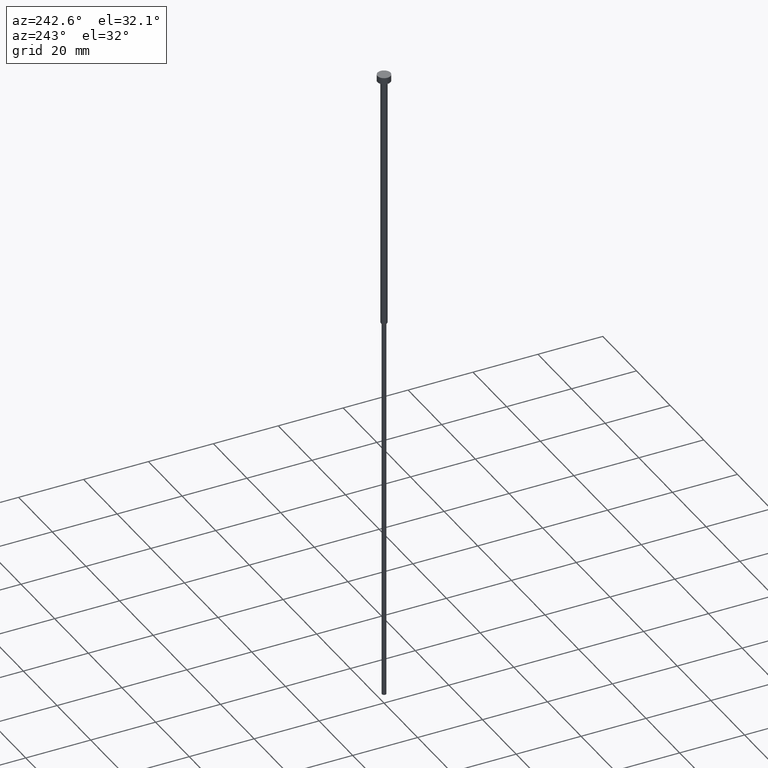
[diagram: clean part render]
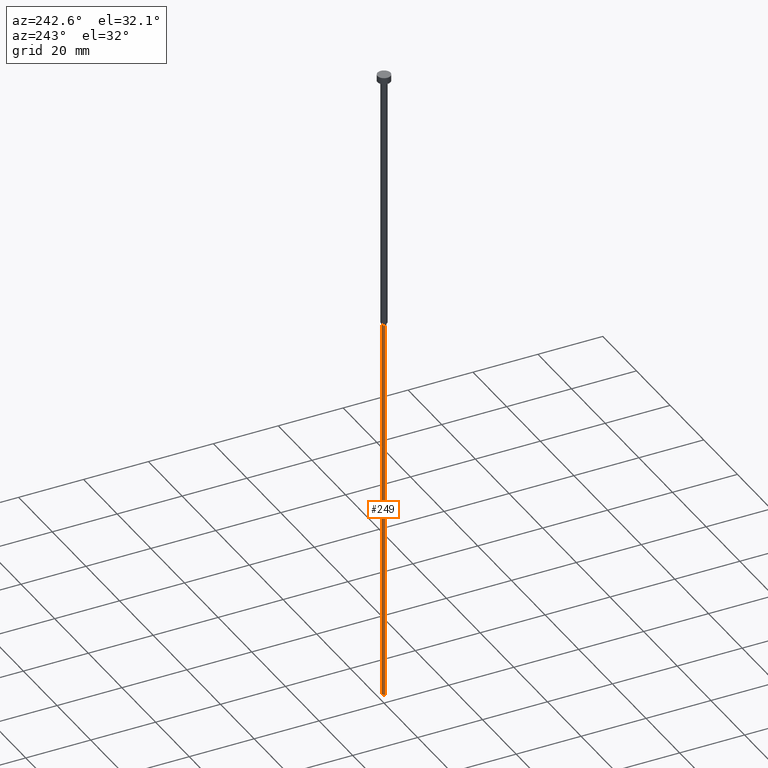
[diagram: same view with one face highlighted and labeled with its STEP entity id]
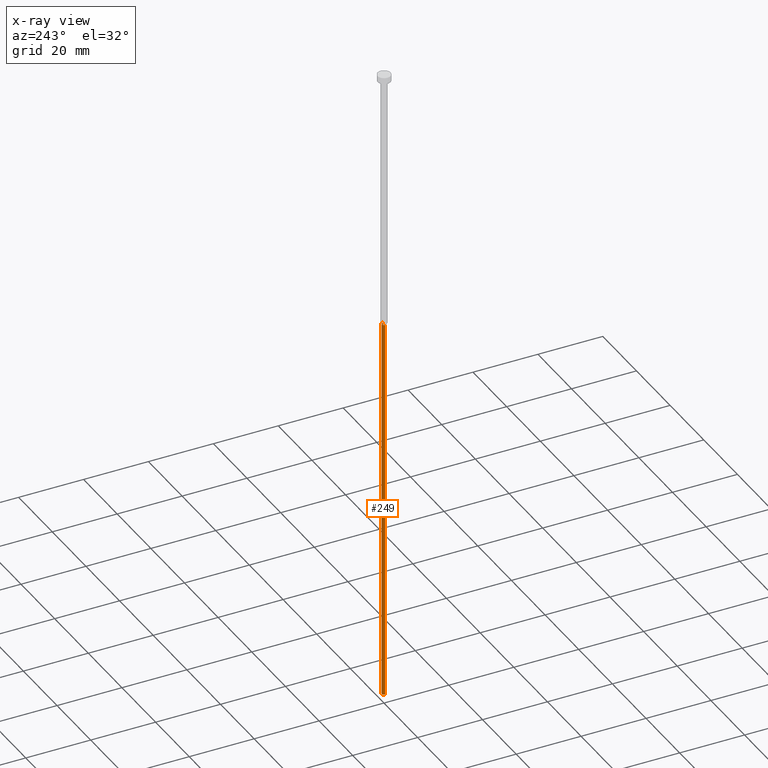
[diagram: x-ray of the same camera — body ghosted, the highlighted face saturated]
A machine part, auxiliary view. The second image highlights one B-rep face of the part: STEP entity #249.
The next image is the same camera in x-ray: the body ghosted, the highlighted face saturated — about 0% of this face is hidden behind the body in this view.
In plain terms, the highlighted cylindrical surface (edge-blend (fillet) strip) has radius 0.65 mm, axis along (-0, -0, 1).
Its self-contained STEP definition (entity closure, byte-faithful):
#1 = VERTEX_POINT ( 'NONE', #144 ) ;
#3 = EDGE_CURVE ( 'NONE', #112, #38, #30, .T. ) ;
#15 = FACE_OUTER_BOUND ( 'NONE', #120, .T. ) ;
#30 = LINE ( 'NONE', #248, #234 ) ;
#38 = VERTEX_POINT ( 'NONE', #174 ) ;
#49 = CYLINDRICAL_SURFACE ( 'NONE', #305, 0.6500000000000000222 ) ;
#55 = DIRECTION ( 'NONE',  ( -0.000000000000000000, -0.000000000000000000, 1.000000000000000000 ) ) ;
#69 = AXIS2_PLACEMENT_3D ( 'NONE', #82, #55, #172 ) ;
#80 = ORIENTED_EDGE ( 'NONE', *, *, #188, .F. ) ;
#82 = CARTESIAN_POINT ( 'NONE',  ( 0.000000000000000000, 0.000000000000000000, -200.0000000000000000 ) ) ;
#83 = CIRCLE ( 'NONE', #69, 0.6500000000000000222 ) ;
#87 = EDGE_CURVE ( 'NONE', #112, #1, #83, .T. ) ;
#98 = ORIENTED_EDGE ( 'NONE', *, *, #87, .T. ) ;
#100 = DIRECTION ( 'NONE',  ( -0.000000000000000000, -0.000000000000000000, 1.000000000000000000 ) ) ;
#105 = CIRCLE ( 'NONE', #138, 0.6500000000000000222 ) ;
#112 = VERTEX_POINT ( 'NONE', #278 ) ;
#115 = DIRECTION ( 'NONE',  ( -0.000000000000000000, -0.000000000000000000, 1.000000000000000000 ) ) ;
#120 = EDGE_LOOP ( 'NONE', ( #98, #259, #80, #201 ) ) ;
#138 = AXIS2_PLACEMENT_3D ( 'NONE', #309, #100, #179 ) ;
#141 = CARTESIAN_POINT ( 'NONE',  ( -0.6500000000000000222, 7.960204194457795477E-17, -80.60621778264911086 ) ) ;
#144 = CARTESIAN_POINT ( 'NONE',  ( -0.6500000000000000222, 7.960204194457795477E-17, -200.0000000000000000 ) ) ;
#153 = VERTEX_POINT ( 'NONE', #141 ) ;
#172 = DIRECTION ( 'NONE',  ( 1.000000000000000000, 0.000000000000000000, 0.000000000000000000 ) ) ;
#174 = CARTESIAN_POINT ( 'NONE',  ( 0.6500000000000000222, 0.000000000000000000, -80.60621778264911086 ) ) ;
#175 = VECTOR ( 'NONE', #274, 1000.000000000000000 ) ;
#179 = DIRECTION ( 'NONE',  ( 1.000000000000000000, 0.000000000000000000, 0.000000000000000000 ) ) ;
#186 = DIRECTION ( 'NONE',  ( 1.000000000000000000, 0.000000000000000000, 0.000000000000000000 ) ) ;
#188 = EDGE_CURVE ( 'NONE', #38, #153, #105, .T. ) ;
#201 = ORIENTED_EDGE ( 'NONE', *, *, #3, .F. ) ;
#215 = DIRECTION ( 'NONE',  ( -0.000000000000000000, -0.000000000000000000, 1.000000000000000000 ) ) ;
#234 = VECTOR ( 'NONE', #115, 1000.000000000000000 ) ;
#245 = CARTESIAN_POINT ( 'NONE',  ( 0.000000000000000000, 0.000000000000000000, 0.000000000000000000 ) ) ;
#248 = CARTESIAN_POINT ( 'NONE',  ( 0.6500000000000000222, 0.000000000000000000, 0.000000000000000000 ) ) ;
#249 = ADVANCED_FACE ( 'NONE', ( #15 ), #49, .T. ) ;
#259 = ORIENTED_EDGE ( 'NONE', *, *, #336, .T. ) ;
#272 = CARTESIAN_POINT ( 'NONE',  ( -0.6500000000000000222, 7.960204194457795477E-17, 0.000000000000000000 ) ) ;
#274 = DIRECTION ( 'NONE',  ( -0.000000000000000000, -0.000000000000000000, 1.000000000000000000 ) ) ;
#278 = CARTESIAN_POINT ( 'NONE',  ( 0.6500000000000000222, 0.000000000000000000, -200.0000000000000000 ) ) ;
#294 = LINE ( 'NONE', #272, #175 ) ;
#305 = AXIS2_PLACEMENT_3D ( 'NONE', #245, #215, #186 ) ;
#309 = CARTESIAN_POINT ( 'NONE',  ( 0.000000000000000000, 0.000000000000000000, -80.60621778264911086 ) ) ;
#336 = EDGE_CURVE ( 'NONE', #1, #153, #294, .T. ) ;